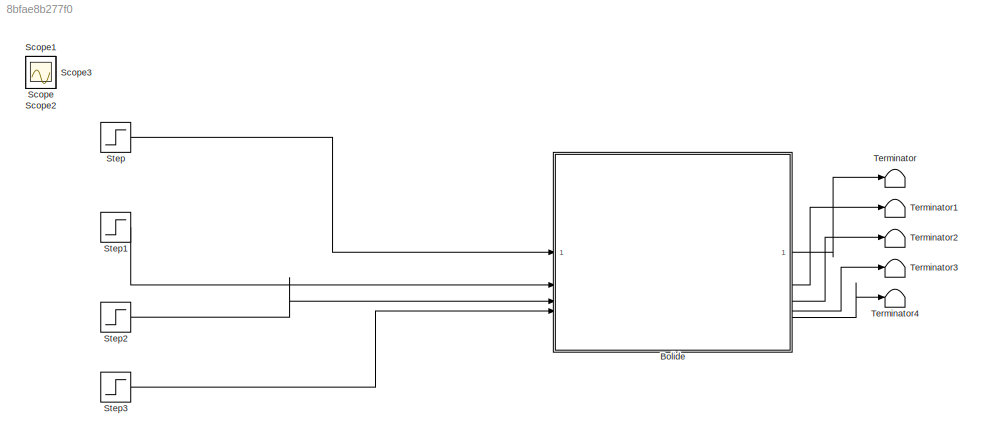
MODEL slx_8bfae8b277f0
KIND model
CONFIG AbsTol = auto
CONFIG EnableMultiTasking = off
CONFIG FixedStep = auto
CONFIG MaxStep = auto
CONFIG MinStep = auto
CONFIG RelTol = 1e-3
CONFIG SampleTimeConstraint = Unconstrained
CONFIG SolverName = VariableStepAuto
CONFIG StartTime = 0.0
CONFIG StopTime = 10.0
WORKSPACE source: MATLAB code (in-file)
WORKSPACE mw = 0.1
WORKSPACE mb = 1
WORKSPACE M = 1.2
WORKSPACE rho = 0.07
WORKSPACE l = 0.02
WORKSPACE d = 0.015
WORKSPACE L = 0.05
WORKSPACE R = 1e6  (= 1000000)
WORKSPACE k = 2.63e4  (= 26300)
WORKSPACE alpha = 34.6
WORKSPACE beta = 2.06e5  (= 206000)
WORKSPACE Iwy = 2.45e-4  (= 0.000245)
WORKSPACE Ipsi = 1.53e-2  (= 0.0153)
WORKSPACE ubar = 0.3
WORKSPACE psibar = 0
WORKSPACE vbar = 0
WORKSPACE ilbar = 0
WORKSPACE irbar = 0
WORKSPACE Ulbar = k*alpha  (= 909980)
WORKSPACE Urbar = k*alpha  (= 909980)
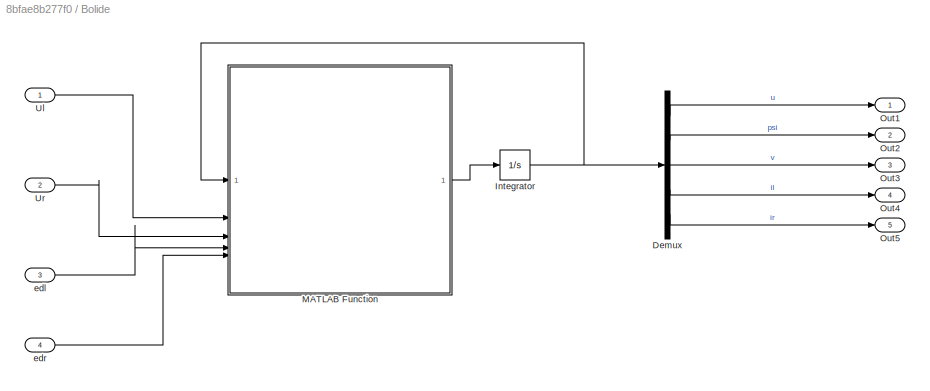
BLOCK [SubSystem] Bolide
BLOCK [Demux] Bolide/Demux
  Outputs = 5
BLOCK [Integrator] Bolide/Integrator
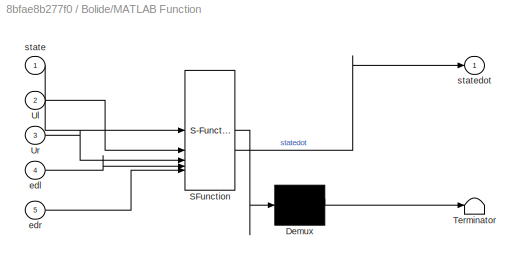
BLOCK [SubSystem] Bolide/MATLAB Function
  ErrorFcn = Stateflow.Translate.translate
  PermitHierarchicalResolution = ExplicitOnly
  SFBlockType = MATLAB Function
  TreatAsAtomicUnit = on
BLOCK [Demux] Bolide/MATLAB Function/ Demux 
  Outputs = 1
BLOCK [S-Function] Bolide/MATLAB Function/ SFunction 
  EnableBusSupport = off
  FunctionName = sf_sfun
  Parameters = Ipsi,Iwy,L,M,R,alpha,beta,d,k,l,mb,rho
  PortCounts = [5 2]
  SFcnIsStateOwnerBlock = off
  SFunctionDeploymentMode = off
  Tag = Stateflow S-Function 2
BLOCK [Terminator] Bolide/MATLAB Function/ Terminator 
BLOCK [Inport] Bolide/MATLAB Function/Ul
  Port = 2
BLOCK [Inport] Bolide/MATLAB Function/Ur
  Port = 3
BLOCK [Inport] Bolide/MATLAB Function/edl
  Port = 4
BLOCK [Inport] Bolide/MATLAB Function/edr
  Port = 5
BLOCK [Inport] Bolide/MATLAB Function/state
BLOCK [Outport] Bolide/MATLAB Function/statedot
BLOCK [Outport] Bolide/Out1
BLOCK [Outport] Bolide/Out2
  Port = 2
BLOCK [Outport] Bolide/Out3
  Port = 3
BLOCK [Outport] Bolide/Out4
  Port = 4
BLOCK [Outport] Bolide/Out5
  Port = 5
BLOCK [Inport] Bolide/Ul
BLOCK [Inport] Bolide/Ur
  Port = 2
BLOCK [Inport] Bolide/edl
  Port = 3
BLOCK [Inport] Bolide/edr
  Port = 4
BLOCK [Scope] Scope
  Floating = off
  IOType = viewer
  NumInputPorts = 1
  ScopeSpecificationString = Simulink.scopes.TimeScopeBlockCfg('CurrentConfiguration', extmgr.ConfigurationSet(extmgr.Configuration('Core','General UI',true),extmgr.Configuration('Core','Source UI',true),extmgr.Configuration('Sources','WiredSimulink',true),extmgr.Configuration('Visuals','Time Domain',true),extmgr.Configuration('Tools','Plot Navigation',true),extmgr.Configuration('Tools','Measurements',true,'Version','2023b'))...<+19ch>
BLOCK [Scope] Scope1
  Floating = off
  IOType = viewer
  NumInputPorts = 1
  ScopeSpecificationString = Simulink.scopes.TimeScopeBlockCfg('CurrentConfiguration', extmgr.ConfigurationSet(extmgr.Configuration('Core','General UI',true),extmgr.Configuration('Core','Source UI',true),extmgr.Configuration('Sources','WiredSimulink',true,'DataLoggingVariableName','ScopeData1'),extmgr.Configuration('Visuals','Time Domain',true),extmgr.Configuration('Tools','Plot Navigation',true),extmgr.Configuration('Tools',...<+58ch>
BLOCK [Scope] Scope2
  Floating = off
  IOType = viewer
  NumInputPorts = 1
  ScopeSpecificationString = Simulink.scopes.TimeScopeBlockCfg('CurrentConfiguration', extmgr.ConfigurationSet(extmgr.Configuration('Core','General UI',true),extmgr.Configuration('Core','Source UI',true),extmgr.Configuration('Sources','WiredSimulink',true,'DataLoggingVariableName','ScopeData2'),extmgr.Configuration('Visuals','Time Domain',true),extmgr.Configuration('Tools','Plot Navigation',true),extmgr.Configuration('Tools',...<+58ch>
BLOCK [Scope] Scope3
  Floating = off
  IOType = viewer
  NumInputPorts = 1
  ScopeSpecificationString = Simulink.scopes.TimeScopeBlockCfg('CurrentConfiguration', extmgr.ConfigurationSet(extmgr.Configuration('Core','General UI',true),extmgr.Configuration('Core','Source UI',true),extmgr.Configuration('Sources','WiredSimulink',true,'DataLoggingVariableName','ScopeData3'),extmgr.Configuration('Visuals','Time Domain',true),extmgr.Configuration('Tools','Plot Navigation',true),extmgr.Configuration('Tools',...<+58ch>
BLOCK [Step] Step
  SampleTime = 0
BLOCK [Step] Step1
  SampleTime = 0
BLOCK [Step] Step2
  SampleTime = 0
BLOCK [Step] Step3
  SampleTime = 0
BLOCK [Terminator] Terminator
BLOCK [Terminator] Terminator1
BLOCK [Terminator] Terminator2
BLOCK [Terminator] Terminator3
BLOCK [Terminator] Terminator4
LINE Bolide/Demux:1 -> Bolide/Out1:1
LINE Bolide/Demux:2 -> Bolide/Out2:1
LINE Bolide/Demux:3 -> Bolide/Out3:1
LINE Bolide/Demux:4 -> Bolide/Out4:1
LINE Bolide/Demux:5 -> Bolide/Out5:1
NET Bolide/Integrator:1 -> Bolide/Demux:1, Bolide/MATLAB Function:1
LINE Bolide/MATLAB Function:1 -> Bolide/Integrator:1
LINE Bolide/Ul:1 -> Bolide/MATLAB Function:2
LINE Bolide/Ur:1 -> Bolide/MATLAB Function:3
LINE Bolide/edl:1 -> Bolide/MATLAB Function:4
LINE Bolide/edr:1 -> Bolide/MATLAB Function:5
LINE Bolide:1 -> Terminator:1
LINE Bolide:2 -> Terminator1:1
LINE Bolide:3 -> Terminator2:1
LINE Bolide:4 -> Terminator3:1
LINE Bolide:5 -> Terminator4:1
LINE Step1:1 -> Bolide:2
LINE Step2:1 -> Bolide:3
LINE Step3:1 -> Bolide:4
LINE Step:1 -> Bolide:1
note: NET lines group one-source signal fan-out (src -> all destinations, sorted); 1:1 wires keep LINE
CHART Bolide/MATLAB Function states=1 transitions=1
  STATE_LABEL 'eML_blk_kernel()'
  STATE_LABEL 'SCRIPT:\nfunction statedot = fcn(state,Ul,Ur,edl,edr,M, rho, l, Iwy, Ipsi, d, L, R, k, mb, alpha, beta)\n% ed est l\'entrée de perturbation, != d (distance AC)\n% Model parameters M,Ipsi,d,L,R,k defined in "Model Explorer/Matlab Code"\n\nu = state(1);\npsi = state(2);\nv = state(3); % psidot\nil = state(4); % Intensité à gauche\nir = state(5);\n\nudot = 1/(M + 2*Iwy/rho)*(1/rho*(il + ir) - mb*d*v^2);\npsidot =...<+212ch>'
CHART  states=0 transitions=0
